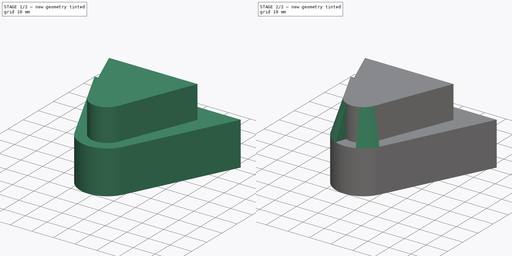
[diagram: build sequence overview — one tinted view per stage of 2, left to right]
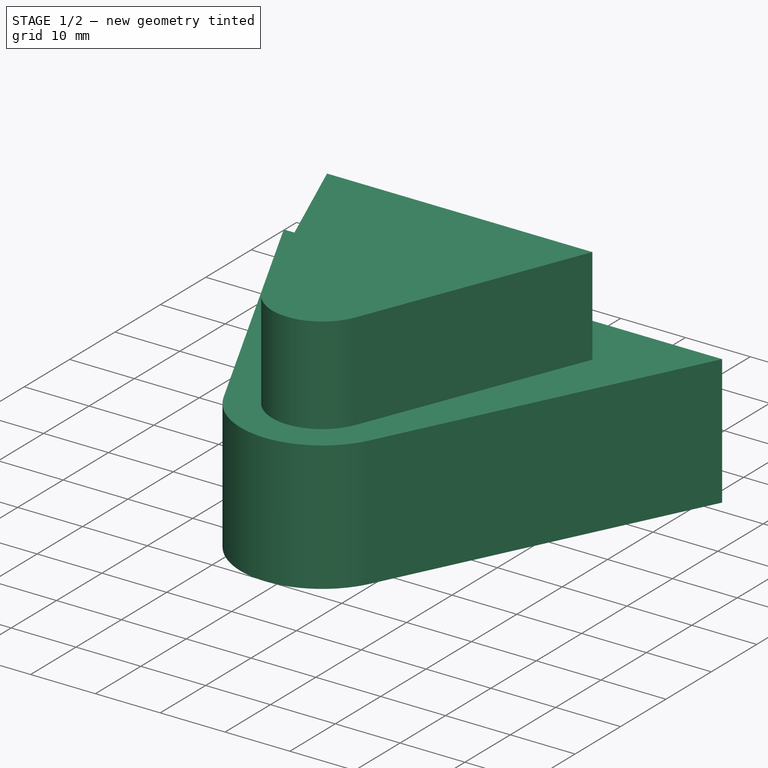
[diagram: stage 1 of 2 — iso view after this stage's code; geometry added in this stage tinted green]
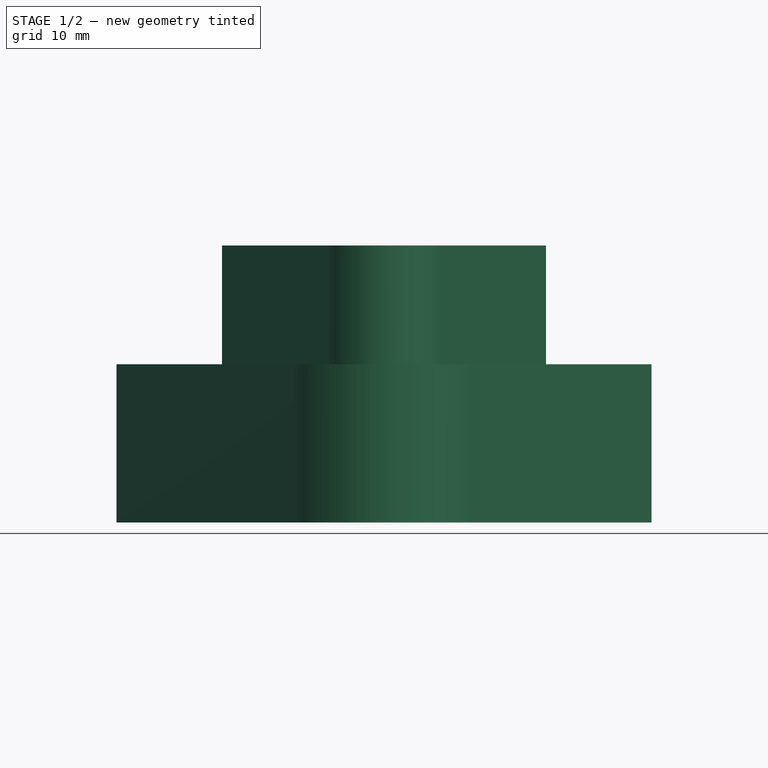
[diagram: stage 1 of 2 — front view after this stage's code; geometry added in this stage tinted green]
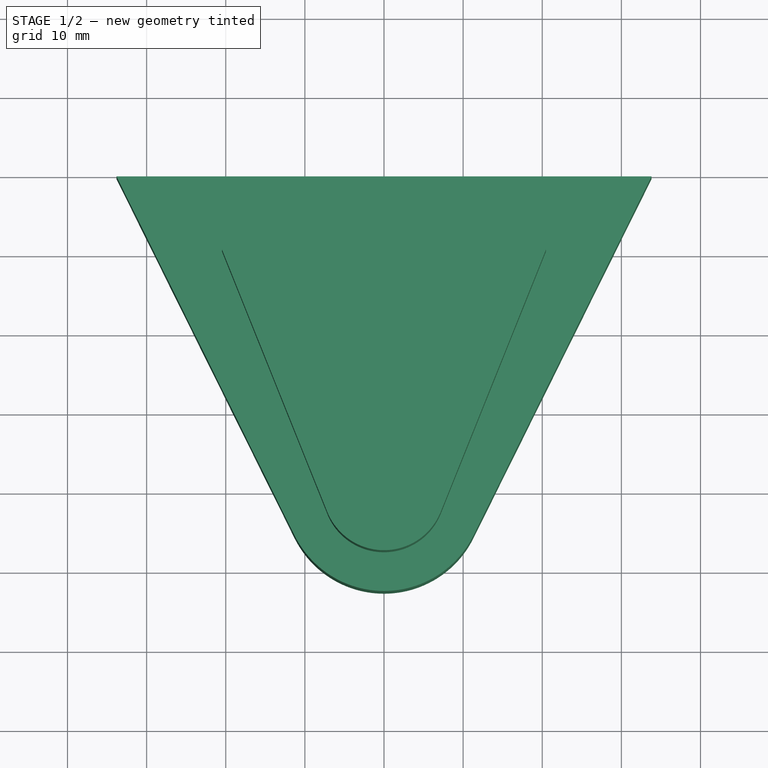
[diagram: stage 1 of 2 — top view after this stage's code; geometry added in this stage tinted green]
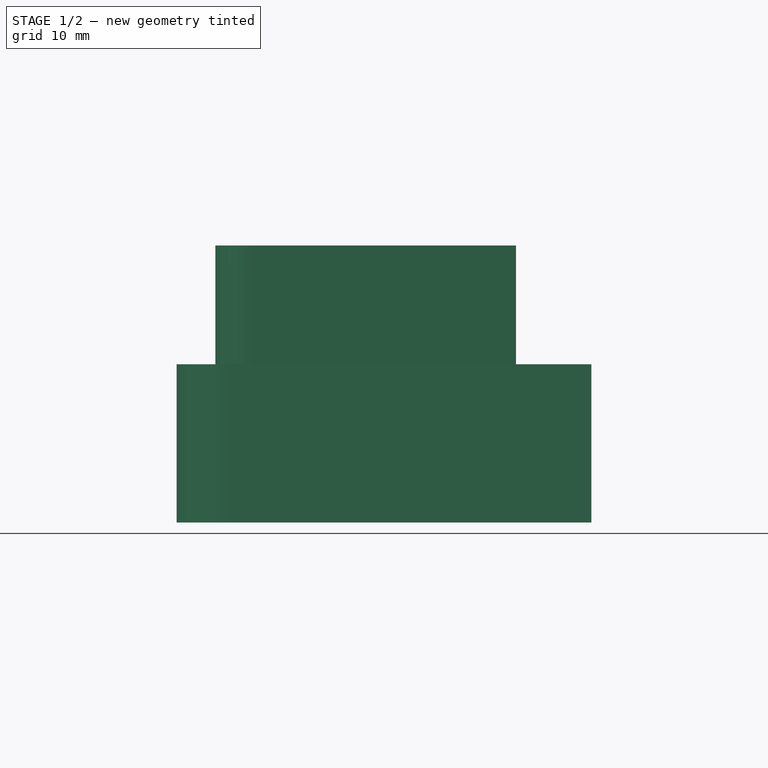
[diagram: stage 1 of 2 — right view after this stage's code; geometry added in this stage tinted green]
FCSTD DOCUMENT  (FreeCAD 0.21RUnknown)
Label: part36
License: All rights reserved
LicenseURL: http://en.wikipedia.org/wiki/All_rights_reserved
objects: Sketcher::SketchObject×8, PartDesign::Pad×2, PartDesign::AdditiveLoft×2, Surface::Filling×2, PartDesign::Body×1, Part::Loft×1, Part::Compound×1
note: 21 computed .brp shape members not serialized (recipe doc carries the construction recipe); baked Part::Feature solids carry a one-line shape summary decoded from their .brp

FEATURE [Sketcher::SketchObject] Sketch
  FullyConstrained = false
  MapMode = 5
  Support = -> [XY_Plane]
  sketch-geometry (6):
    g0: LineSegment StartX=-11.3011 StartY=-5.60366 StartZ=0 EndX=-33.8097 EndY=39.7902 EndZ=0
    g1: LineSegment StartX=11.3011 StartY=-5.60366 StartZ=0 EndX=33.8097 EndY=39.7902 EndZ=0
    g2: LineSegment StartX=-33.8097 StartY=39.7902 StartZ=0 EndX=33.8097 EndY=39.7902 EndZ=0
    g3: ArcOfCircle CenterX=0 CenterY=0 CenterZ=0 NormalX=0 NormalY=0 NormalZ=1 AngleXU=0 Radius=12.6141 StartAngle=3.60192 EndAngle=4.33567
    g4: ArcOfCircle CenterX=0 CenterY=0 CenterZ=0 NormalX=0 NormalY=0 NormalZ=1 AngleXU=0 Radius=12.6141 StartAngle=4.33567 EndAngle=5.08911
    g5: ArcOfCircle CenterX=0 CenterY=0 CenterZ=0 NormalX=0 NormalY=0 NormalZ=1 AngleXU=0 Radius=12.6141 StartAngle=5.08911 EndAngle=5.82286
  constraints (10):
    c: Tangent(g1,g5) = -1.5708
    c: Tangent(g0,g3) = 1.5708
    c: Coincident(g2,g0)
    c: Coincident(g2,g1)
    c: Coincident(g3,g-1)
    c: Symmetric(g0,g1,g-2)
    c: Coincident(g3,g4)
    c: Coincident(g3,g4)
    c: Coincident(g4,g5)
    c: Coincident(g4,g5)
FEATURE [PartDesign::Pad] Pad
  Direction = (0,0,1)
  Length = 20
  Length2 = 10
  Profile = -> Sketch
  ReferenceAxis = -> Sketch [N_Axis]
  Type = 0
FEATURE [Sketcher::SketchObject] Sketch001
  FullyConstrained = false
  MapMode = 5
  Placement = pos=(0,0,20) rot=(0,0,1;0rad)
  Support = -> [Pad]
  sketch-geometry (6):
    g0: LineSegment StartX=-7.16676 StartY=-2.87611 StartZ=0 EndX=-20.4676 EndY=30.2672 EndZ=0
    g1: LineSegment StartX=-20.4676 StartY=30.2672 StartZ=0 EndX=20.4676 EndY=30.2672 EndZ=0
    g2: LineSegment StartX=20.4676 StartY=30.2672 StartZ=0 EndX=7.16676 EndY=-2.87611 EndZ=0
    g3: ArcOfCircle CenterX=0 CenterY=0 CenterZ=0 NormalX=0 NormalY=0 NormalZ=1 AngleXU=0 Radius=7.72234 StartAngle=3.52323 EndAngle=4.30908
    g4: ArcOfCircle CenterX=0 CenterY=0 CenterZ=0 NormalX=0 NormalY=0 NormalZ=1 AngleXU=0 Radius=7.72234 StartAngle=4.30908 EndAngle=5.1157
    g5: ArcOfCircle CenterX=0 CenterY=0 CenterZ=0 NormalX=0 NormalY=0 NormalZ=1 AngleXU=0 Radius=7.72234 StartAngle=5.1157 EndAngle=5.90155
  constraints (10):
    c: Coincident(g0,g1)
    c: Coincident(g1,g2)
    c: Tangent(g3,g0) = 1.5708
    c: Tangent(g2,g5) = 1.5708
    c: Symmetric(g0,g1,g-2)
    c: Coincident(g3,g-1)
    c: Coincident(g3,g4)
    c: Coincident(g3,g4)
    c: Coincident(g4,g5)
    c: Coincident(g4,g5)
FEATURE [PartDesign::Pad] Pad001
  BaseFeature = -> Pad
  Direction = (0,0,1)
  Length = 15
  Length2 = 10
  Profile = -> Sketch001
  ReferenceAxis = -> Sketch001 [N_Axis]
  Type = 0
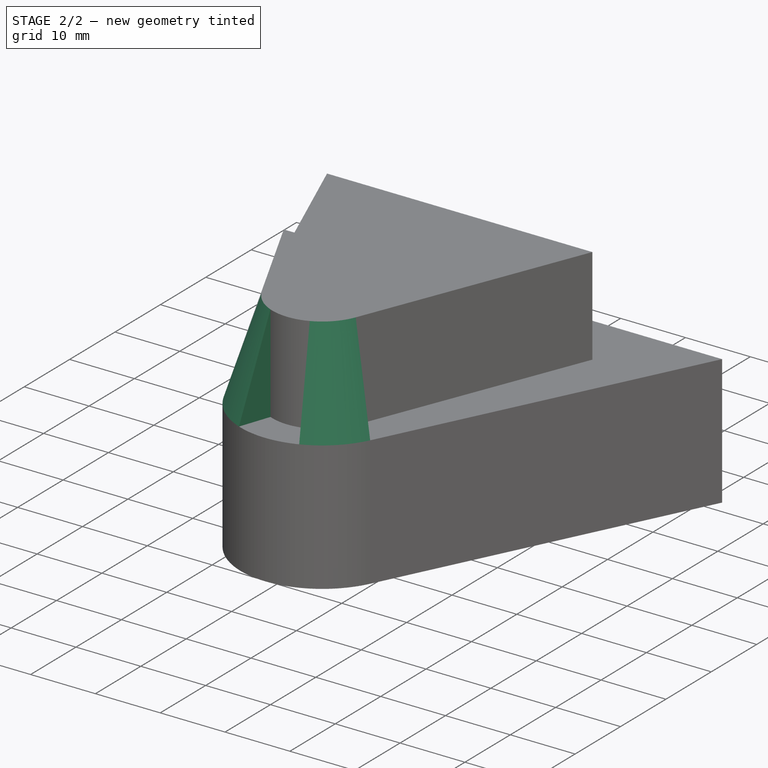
[diagram: stage 2 of 2 — iso view after this stage's code; geometry added in this stage tinted green]
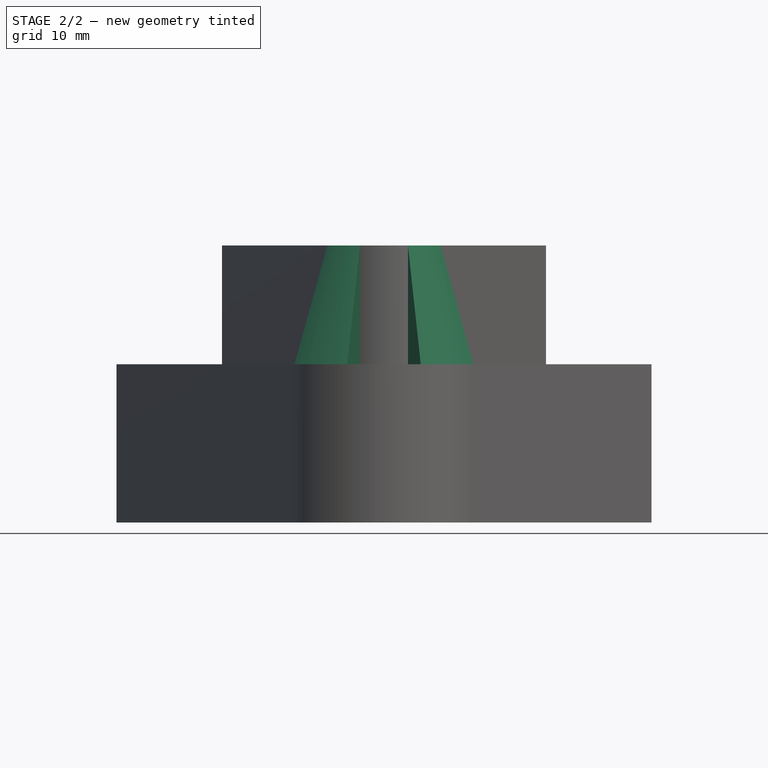
[diagram: stage 2 of 2 — front view after this stage's code; geometry added in this stage tinted green]
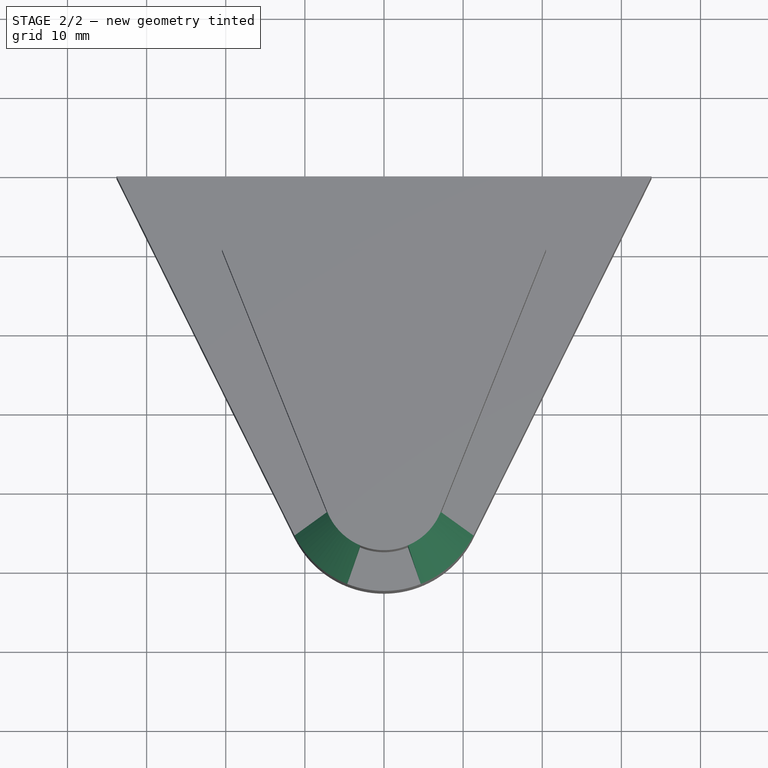
[diagram: stage 2 of 2 — top view after this stage's code; geometry added in this stage tinted green]
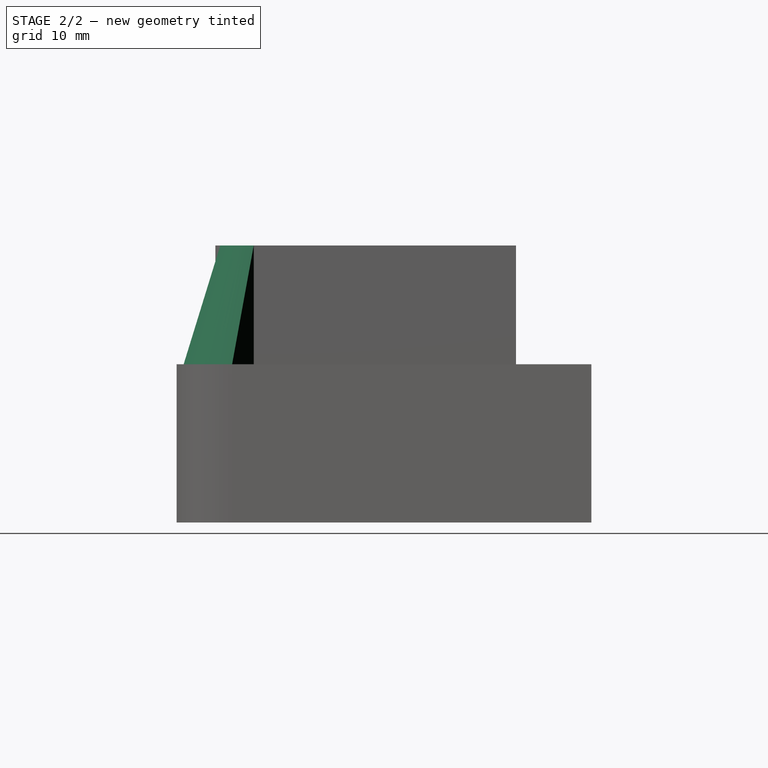
[diagram: stage 2 of 2 — right view after this stage's code; geometry added in this stage tinted green]
FEATURE [PartDesign::AdditiveLoft] AdditiveLoft
  BaseFeature = -> Pad001
  Closed = false
  Profile = -> Pad001 [Face9]
  Ruled = false
  Sections = -> [Pad001]
FEATURE [PartDesign::AdditiveLoft] AdditiveLoft001
  BaseFeature = -> AdditiveLoft
  Closed = false
  Profile = -> AdditiveLoft [Face12]
  Ruled = false
  Sections = -> [AdditiveLoft]
FEATURE [PartDesign::Body] Body
  Group = -> [Sketch,Pad,Sketch001,Pad001,AdditiveLoft,AdditiveLoft001]
  Origin = -> Origin
  Tip = -> AdditiveLoft001
FEATURE [Sketcher::SketchObject] Sketch002  label="SurfaceProfile"
  FullyConstrained = true
  sketch-geometry (4):
    g0: ArcOfCircle CenterX=-40 CenterY=0 CenterZ=0 NormalX=0 NormalY=0 NormalZ=1 AngleXU=0 Radius=20 StartAngle=1.5708 EndAngle=4.71239
    g1: ArcOfCircle CenterX=40 CenterY=0 CenterZ=0 NormalX=0 NormalY=0 NormalZ=1 AngleXU=0 Radius=20 StartAngle=4.71239 EndAngle=7.85398
    g2: LineSegment StartX=-40 StartY=-20 StartZ=0 EndX=40 EndY=-20 EndZ=0
    g3: LineSegment StartX=40 StartY=20 StartZ=0 EndX=-40 EndY=20 EndZ=0
  constraints (9):
    c: Tangent(g0,g2) = -1.5708
    c: Tangent(g2,g1) = -1.5708
    c: Tangent(g1,g3) = -1.5708
    c: Tangent(g3,g0) = -1.5708
    c: Equal(g0,g1)
    c: PointOnObject(g0,g-1)
    c: DistanceX(g3,g3) = 80
    c: Radius(g0) = 20
    c: Symmetric(g0,g1,g-1)
FEATURE [Sketcher::SketchObject] Sketch003
  FullyConstrained = true
  Placement = pos=(0,0,-10) rot=(0,0,1;0rad)
  sketch-geometry (4):
    g0: ArcOfCircle CenterX=-45 CenterY=0 CenterZ=0 NormalX=0 NormalY=0 NormalZ=1 AngleXU=0 Radius=25 StartAngle=1.5708 EndAngle=4.71239
    g1: ArcOfCircle CenterX=45 CenterY=0 CenterZ=0 NormalX=0 NormalY=0 NormalZ=1 AngleXU=0 Radius=25 StartAngle=4.71239 EndAngle=7.85398
    g2: LineSegment StartX=-45 StartY=-25 StartZ=0 EndX=45 EndY=-25 EndZ=0
    g3: LineSegment StartX=45 StartY=25 StartZ=0 EndX=-45 EndY=25 EndZ=0
  constraints (9):
    c: Tangent(g0,g2) = -1.5708
    c: Tangent(g2,g1) = -1.5708
    c: Tangent(g1,g3) = -1.5708
    c: Tangent(g3,g0) = -1.5708
    c: Equal(g0,g1)
    c: PointOnObject(g0,g-1)
    c: DistanceX(g3,g3) = 90
    c: Radius(g0) = 25
    c: Symmetric(g0,g1,g-1)
FEATURE [Sketcher::SketchObject] Sketch004
  FullyConstrained = true
  Placement = pos=(0,0,-20) rot=(0,0,1;0rad)
  sketch-geometry (4):
    g0: ArcOfCircle CenterX=-50 CenterY=0 CenterZ=0 NormalX=0 NormalY=0 NormalZ=1 AngleXU=0 Radius=30 StartAngle=1.5708 EndAngle=4.71239
    g1: ArcOfCircle CenterX=50 CenterY=0 CenterZ=0 NormalX=0 NormalY=0 NormalZ=1 AngleXU=0 Radius=30 StartAngle=4.71239 EndAngle=7.85398
    g2: LineSegment StartX=-50 StartY=-30 StartZ=0 EndX=50 EndY=-30 EndZ=0
    g3: LineSegment StartX=50 StartY=30 StartZ=0 EndX=-50 EndY=30 EndZ=0
  constraints (9):
    c: Tangent(g0,g2) = -1.5708
    c: Tangent(g2,g1) = -1.5708
    c: Tangent(g1,g3) = -1.5708
    c: Tangent(g3,g0) = -1.5708
    c: Equal(g0,g1)
    c: PointOnObject(g0,g-1)
    c: DistanceX(g3,g3) = 100
    c: Radius(g0) = 30
    c: Symmetric(g0,g1,g-1)
FEATURE [Sketcher::SketchObject] Sketch005  label="Profile1"
  AttachmentOffset = pos=(1,0,0) rot=(0,1,0;1.5708rad)
  ExternalGeometry = -> [Sketch002]
  FullyConstrained = true
  MapMode = 49
  Placement = pos=(-39,-20,0) rot=(0,1,0;1.5708rad)
  Support = -> [Sketch002]
  sketch-geometry (1):
    g0: ArcOfCircle CenterX=0 CenterY=20 CenterZ=0 NormalX=0 NormalY=0 NormalZ=1 AngleXU=0 Radius=20 StartAngle=1.5708 EndAngle=4.71239
  constraints (3):
    c: Coincident(g0,g-1)
    c: Coincident(g0,g-3)
    c: PointOnObject(g0,g-2)
FEATURE [Sketcher::SketchObject] Sketch006  label="Profile002"
  AttachmentOffset = pos=(1,0,0) rot=(0,1,0;1.5708rad)
  ExternalGeometry = -> [Sketch002]
  FullyConstrained = true
  MapMode = 52
  Placement = pos=(39,20,0) rot=(-0.707107,0,0.707107;3.14159rad)
  Support = -> [Sketch002]
  sketch-geometry (1):
    g0: ArcOfCircle CenterX=0 CenterY=20 CenterZ=0 NormalX=0 NormalY=0 NormalZ=1 AngleXU=0 Radius=20 StartAngle=1.5708 EndAngle=4.71239
  constraints (3):
    c: Coincident(g0,g-3)
    c: Coincident(g0,g-4)
    c: PointOnObject(g0,g-2)
FEATURE [Sketcher::SketchObject] Sketch007
  ExternalGeometry = -> [Sketch005,Sketch002,Sketch006,Sketch003]
  FullyConstrained = false
  Placement = pos=(0,0,0) rot=(1,0,0;1.5708rad)
  sketch-geometry (6):
    g0: ArcOfCircle CenterX=-24.8771 CenterY=-15.854 CenterZ=0 NormalX=0 NormalY=0 NormalZ=1 AngleXU=0 Radius=38.5353 StartAngle=1.94603 EndAngle=2.71759
    g1: ArcOfCircle CenterX=-334.82 CenterY=-393.536 CenterZ=0 NormalX=0 NormalY=0 NormalZ=1 AngleXU=0 Radius=557.453 StartAngle=0.783769 EndAngle=0.835798
    g2: LineSegment StartX=-60 StartY=-7.1e-15 StartZ=0 EndX=-74.6083 EndY=-32.3631 EndZ=0
    g3: ArcOfCircle CenterX=-22.1459 CenterY=-22.7879 CenterZ=0 NormalX=0 NormalY=0 NormalZ=1 AngleXU=0 Radius=45.9877 StartAngle=1.08096 EndAngle=1.94603
    g4: ArcOfCircle CenterX=20.3373 CenterY=-0.645486 CenterZ=0 NormalX=0 NormalY=0 NormalZ=1 AngleXU=0 Radius=27.8304 StartAngle=0.835798 EndAngle=2.41745
    g5: LineSegment StartX=60 StartY=0 StartZ=0 EndX=82.891 EndY=-22.9657 EndZ=0
  constraints (9):
    c: Coincident(g0,g-4)
    c: Coincident(g0,g-3)
    c: Coincident(g1,g-6)
    c: Coincident(g1,g-5) = -1.5708
    c: Tangent(g2,g0) = -1.5708
    c: Tangent(g4,g1) = -1.5708
    c: Tangent(g3,g0) = -1.5708
    c: Tangent(g5,g1) = 1.5708
    c: Coincident(g4,g3)
FEATURE [Surface::Filling] Surface
  Anisotropy = false
  BoundaryEdges = -> [Sketch002]
  BoundaryOrder = [0,0,0,0]
  Degree = 3
  Iterations = 2
  MaximumDegree = 8
  MaximumSegments = 9
  PointsOnCurve = 15
  TolAngular = 0.01
  TolCurvature = 0.1
  Tolerance2d = 1e-05
  Tolerance3d = 0.0001
  UnboundEdges = -> [Sketch007,Sketch005,Sketch006]
  UnboundOrder = [0,0,0,0,0,0]
FEATURE [Part::Loft] Loft
  Closed = false
  MaxDegree = 5
  Ruled = false
  Sections = -> [Sketch004,Sketch003,Surface]
  Solid = false
FEATURE [Surface::Filling] Surface001
  Anisotropy = false
  BoundaryEdges = -> [Loft]
  BoundaryOrder = [0,0,0,0]
  Degree = 3
  Iterations = 2
  MaximumDegree = 8
  MaximumSegments = 9
  PointsOnCurve = 15
  TolAngular = 0.01
  TolCurvature = 0.1
  Tolerance2d = 1e-05
  Tolerance3d = 0.0001
FEATURE [Part::Compound] Compound
  Links = -> [Surface001,Surface,Loft]
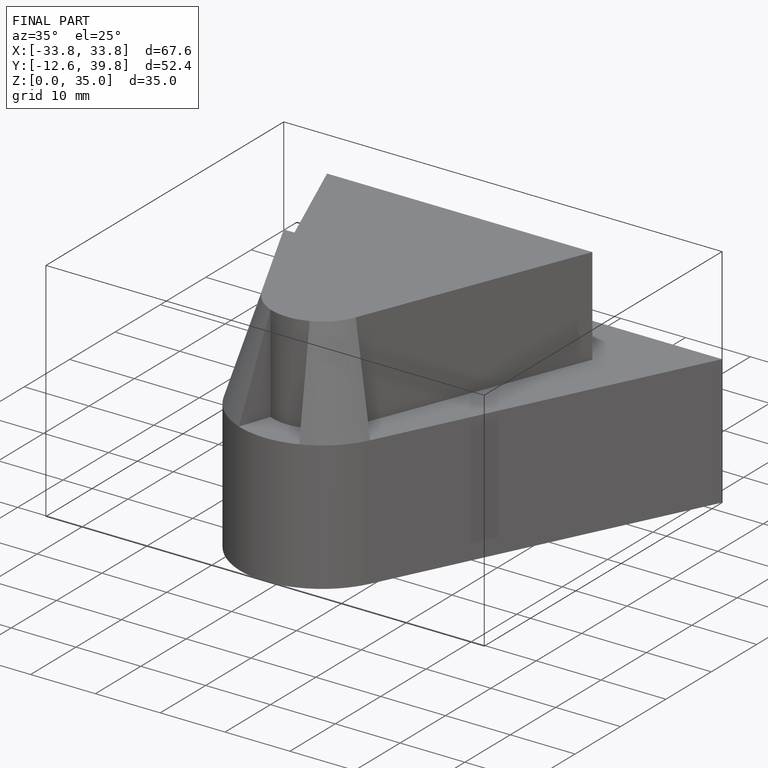
[diagram: finished part — iso view with bounding-box wireframe]
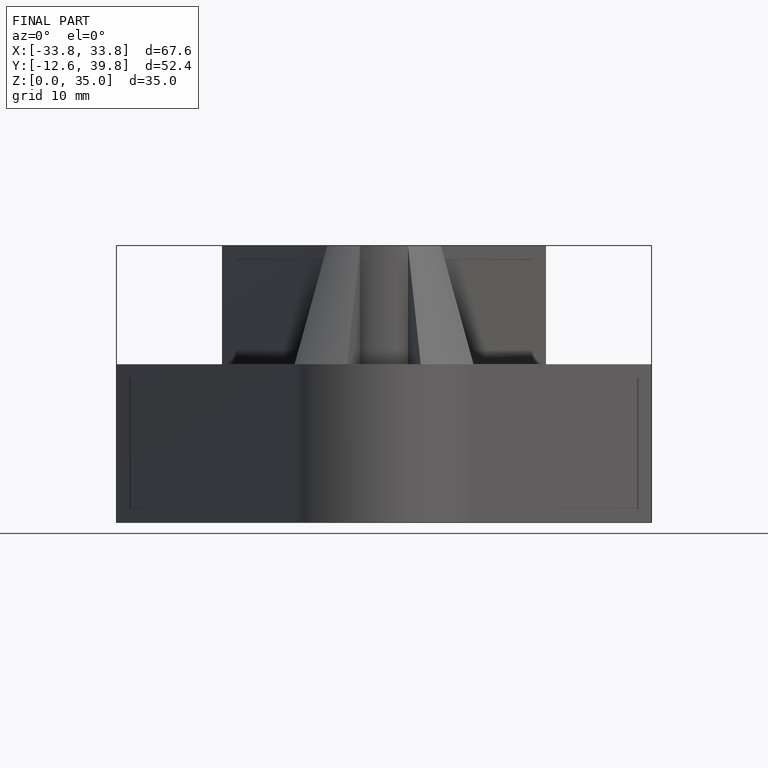
[diagram: finished part — front view with bounding-box wireframe]
